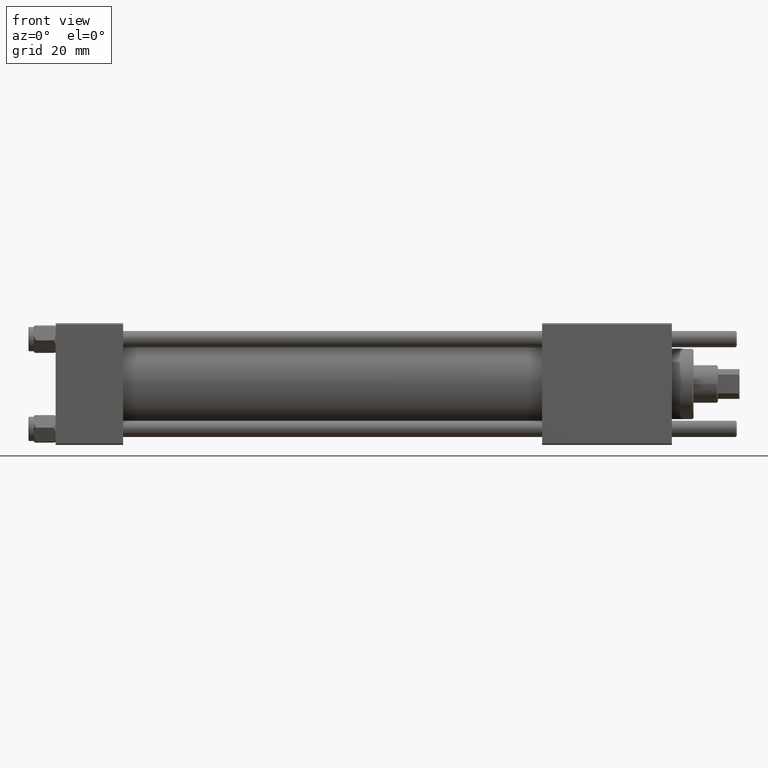
[diagram: clean part render]
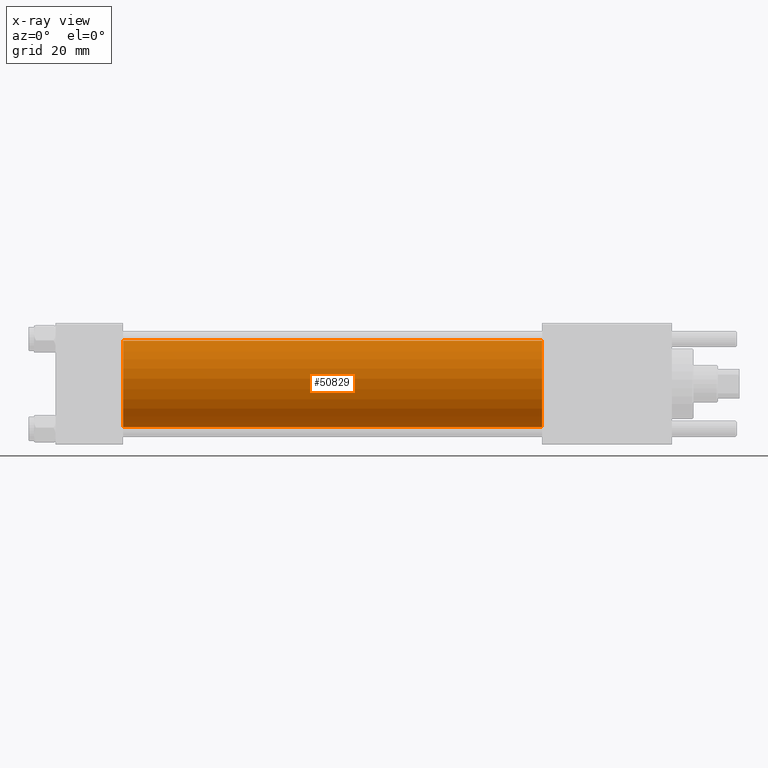
[diagram: x-ray — body ghosted, one internal face saturated and labeled with its STEP entity id]
A machine part, front view, then the same camera in x-ray: the body is ghosted and one INTERNAL B-rep face — a face not visible from any outside direction — is saturated and labeled: STEP entity #50829.
In plain terms, the highlighted cylindrical surface (partial cylindrical patch) has radius 16 mm, axis along (-1, -0, -0).
Its self-contained STEP definition (entity closure, byte-faithful):
#5 = ORIENTED_EDGE ( 'NONE', *, *, #51586, .F. ) ;
#256 = DIRECTION ( 'NONE',  ( -1.000000000000000000, -0.000000000000000000, -0.000000000000000000 ) ) ;
#3215 = DIRECTION ( 'NONE',  ( 0.000000000000000000, 0.000000000000000000, -1.000000000000000000 ) ) ;
#3349 = LINE ( 'NONE', #12260, #3551 ) ;
#3551 = VECTOR ( 'NONE', #21149, 1000.000000000000000 ) ;
#12182 = CYLINDRICAL_SURFACE ( 'NONE', #20940, 16.00000000000000000 ) ;
#12260 = CARTESIAN_POINT ( 'NONE',  ( 180.0000000000000000, -2.602085213965210642E-15, 16.00000000000000000 ) ) ;
#12430 = AXIS2_PLACEMENT_3D ( 'NONE', #23358, #19049, #3215 ) ;
#14438 = VERTEX_POINT ( 'NONE', #29949 ) ;
#15069 = EDGE_CURVE ( 'NONE', #28268, #22633, #15938, .T. ) ;
#15486 = CARTESIAN_POINT ( 'NONE',  ( 25.00000000000000000, -2.602085213965210642E-15, 16.00000000000000000 ) ) ;
#15539 = ORIENTED_EDGE ( 'NONE', *, *, #41342, .F. ) ;
#15910 = DIRECTION ( 'NONE',  ( 0.000000000000000000, 0.000000000000000000, 1.000000000000000000 ) ) ;
#15938 = CIRCLE ( 'NONE', #34289, 16.00000000000000000 ) ;
#16560 = VECTOR ( 'NONE', #256, 1000.000000000000000 ) ;
#17155 = DIRECTION ( 'NONE',  ( 0.000000000000000000, 0.000000000000000000, -1.000000000000000000 ) ) ;
#19043 = EDGE_LOOP ( 'NONE', ( #20082, #19102, #15539, #5 ) ) ;
#19049 = DIRECTION ( 'NONE',  ( 1.000000000000000000, 0.000000000000000000, 0.000000000000000000 ) ) ;
#19102 = ORIENTED_EDGE ( 'NONE', *, *, #53228, .T. ) ;
#20082 = ORIENTED_EDGE ( 'NONE', *, *, #15069, .T. ) ;
#20940 = AXIS2_PLACEMENT_3D ( 'NONE', #46097, #46385, #15910 ) ;
#21149 = DIRECTION ( 'NONE',  ( -1.000000000000000000, -0.000000000000000000, -0.000000000000000000 ) ) ;
#21462 = CARTESIAN_POINT ( 'NONE',  ( 180.0000000000000000, -2.602085213965210642E-15, 0.000000000000000000 ) ) ;
#22633 = VERTEX_POINT ( 'NONE', #27538 ) ;
#23358 = CARTESIAN_POINT ( 'NONE',  ( 25.00000000000000000, -2.602085213965210642E-15, 0.000000000000000000 ) ) ;
#27538 = CARTESIAN_POINT ( 'NONE',  ( 180.0000000000000000, -6.426503353294456087E-16, -16.00000000000000000 ) ) ;
#28268 = VERTEX_POINT ( 'NONE', #48544 ) ;
#29949 = CARTESIAN_POINT ( 'NONE',  ( 25.00000000000000000, -6.426503353294456087E-16, -16.00000000000000000 ) ) ;
#34289 = AXIS2_PLACEMENT_3D ( 'NONE', #21462, #56525, #17155 ) ;
#34470 = LINE ( 'NONE', #52005, #16560 ) ;
#40823 = VERTEX_POINT ( 'NONE', #15486 ) ;
#41342 = EDGE_CURVE ( 'NONE', #40823, #14438, #55538, .T. ) ;
#46097 = CARTESIAN_POINT ( 'NONE',  ( 180.0000000000000000, -2.602085213965210642E-15, 0.000000000000000000 ) ) ;
#46385 = DIRECTION ( 'NONE',  ( -1.000000000000000000, -0.000000000000000000, -0.000000000000000000 ) ) ;
#48544 = CARTESIAN_POINT ( 'NONE',  ( 180.0000000000000000, -2.602085213965210642E-15, 16.00000000000000000 ) ) ;
#50829 = ADVANCED_FACE ( 'NONE', ( #55292 ), #12182, .F. ) ;
#51586 = EDGE_CURVE ( 'NONE', #28268, #40823, #3349, .T. ) ;
#52005 = CARTESIAN_POINT ( 'NONE',  ( 180.0000000000000000, -6.426503353294456087E-16, -16.00000000000000000 ) ) ;
#53228 = EDGE_CURVE ( 'NONE', #22633, #14438, #34470, .T. ) ;
#55292 = FACE_OUTER_BOUND ( 'NONE', #19043, .T. ) ;
#55538 = CIRCLE ( 'NONE', #12430, 16.00000000000000000 ) ;
#56525 = DIRECTION ( 'NONE',  ( 1.000000000000000000, 0.000000000000000000, 0.000000000000000000 ) ) ;